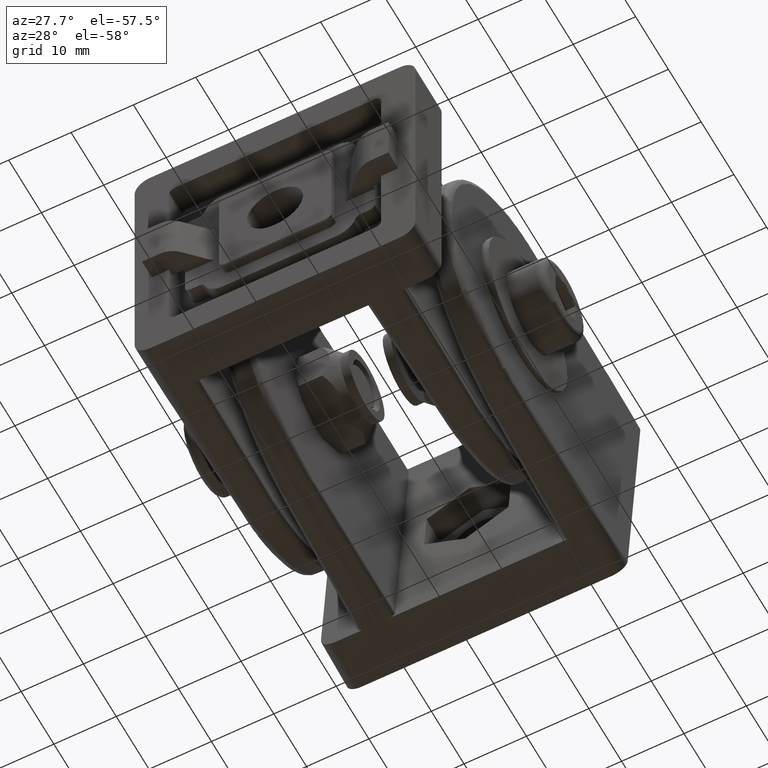
[diagram: clean part render]
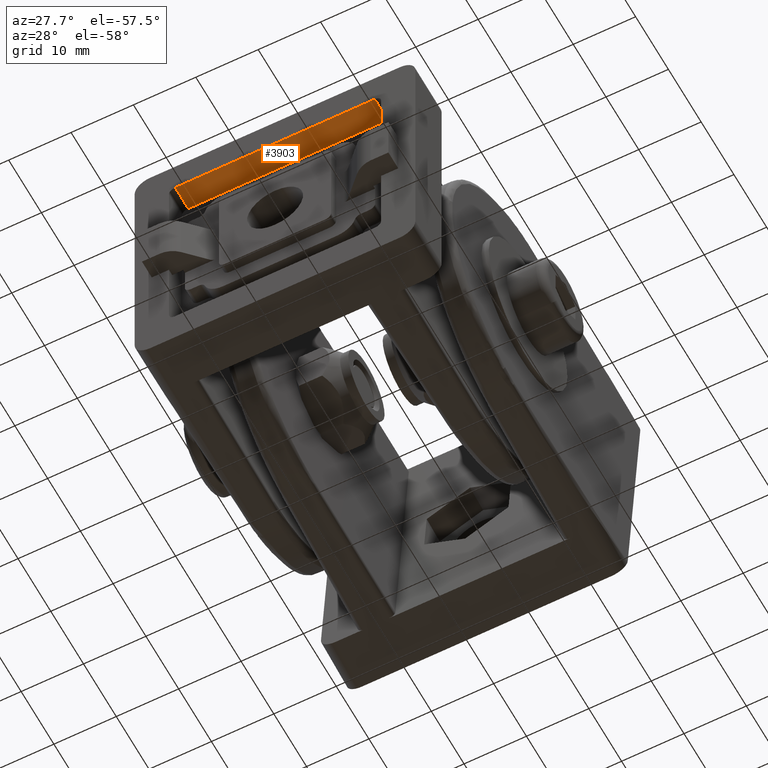
[diagram: same view with one face highlighted and labeled with its STEP entity id]
A machine part, auxiliary view. The second image highlights one B-rep face of the part: STEP entity #3903.
In plain terms, the highlighted planar face has unit normal (0, 0, 1).
Its self-contained STEP definition (entity closure, byte-faithful):
#99=LINE('',#5848,#439);
#134=LINE('',#6162,#474);
#135=LINE('',#6163,#475);
#136=LINE('',#6164,#476);
#439=VECTOR('',#4578,32.);
#474=VECTOR('',#4645,32.);
#475=VECTOR('',#4646,4.);
#476=VECTOR('',#4647,4.);
#777=PLANE('',#4164);
#1046=FACE_OUTER_BOUND('',#1282,.T.);
#1282=EDGE_LOOP('',(#2831,#2832,#2833,#2834));
#1786=VERTEX_POINT('',#5845);
#1787=VERTEX_POINT('',#5847);
#1822=VERTEX_POINT('',#6160);
#1823=VERTEX_POINT('',#6161);
#2176=EDGE_CURVE('',#1787,#1786,#99,.T.);
#2229=EDGE_CURVE('',#1822,#1823,#134,.T.);
#2230=EDGE_CURVE('',#1822,#1787,#135,.T.);
#2231=EDGE_CURVE('',#1786,#1823,#136,.T.);
#2831=ORIENTED_EDGE('',*,*,#2229,.F.);
#2832=ORIENTED_EDGE('',*,*,#2230,.T.);
#2833=ORIENTED_EDGE('',*,*,#2176,.T.);
#2834=ORIENTED_EDGE('',*,*,#2231,.T.);
#3903=ADVANCED_FACE('',(#1046),#777,.F.);
#4164=AXIS2_PLACEMENT_3D('',#6159,#4643,#4644);
#4578=DIRECTION('',(-1.,0.,0.));
#4643=DIRECTION('center_axis',(0.,0.,1.));
#4644=DIRECTION('ref_axis',(1.,0.,0.));
#4645=DIRECTION('',(-1.,0.,0.));
#4646=DIRECTION('',(0.,-1.,0.));
#4647=DIRECTION('',(0.,1.,0.));
#5845=CARTESIAN_POINT('',(-16.,0.,39.5));
#5847=CARTESIAN_POINT('',(16.,0.,39.5));
#5848=CARTESIAN_POINT('',(17.,0.,39.5));
#6159=CARTESIAN_POINT('Origin',(17.,4.,39.5));
#6160=CARTESIAN_POINT('',(16.,4.,39.5));
#6161=CARTESIAN_POINT('',(-16.,4.,39.5));
#6162=CARTESIAN_POINT('',(17.,4.,39.5));
#6163=CARTESIAN_POINT('',(16.,0.,39.5));
#6164=CARTESIAN_POINT('',(-16.,4.,39.5));